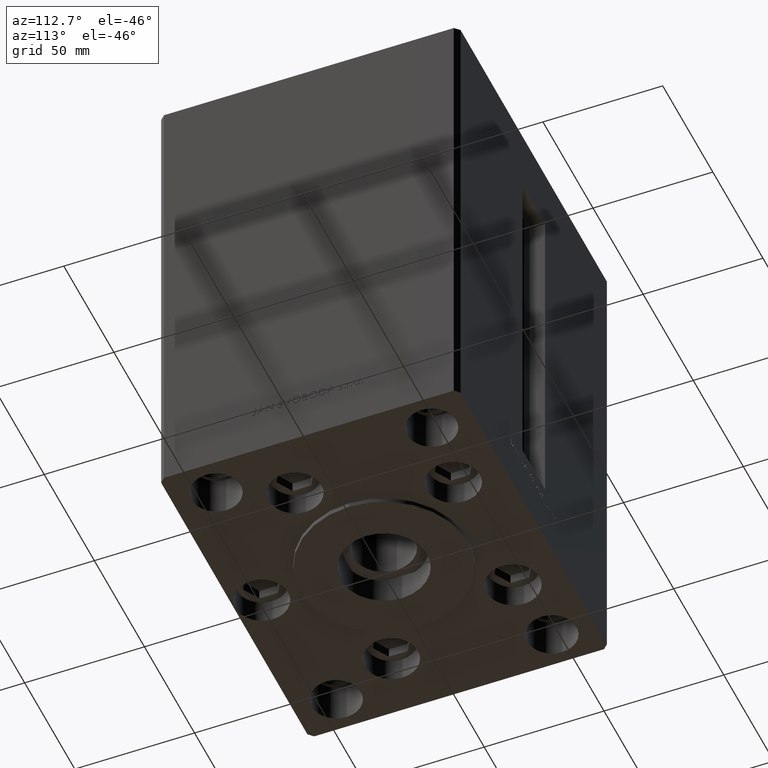
[diagram: clean part render]
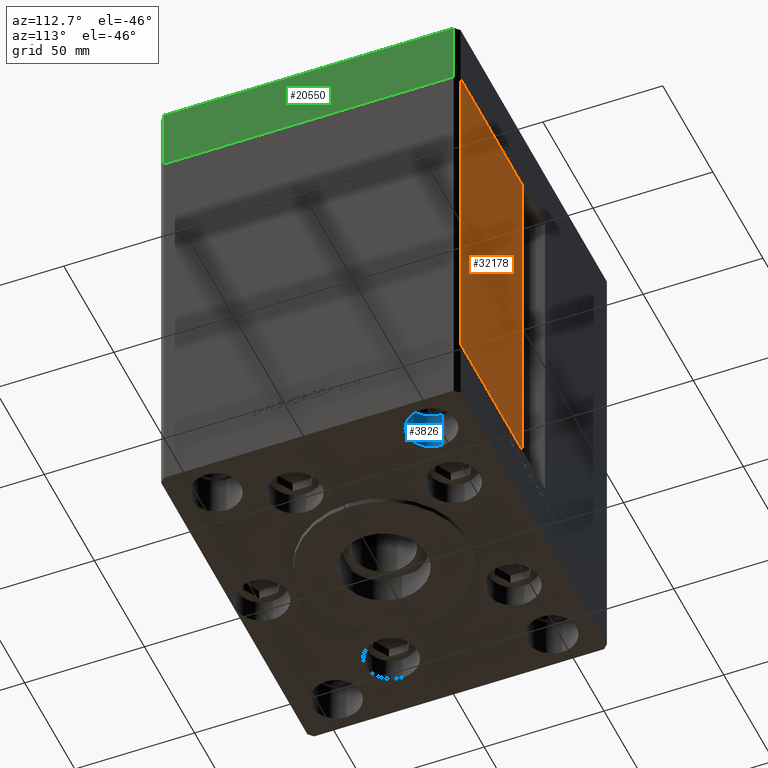
[diagram: same view with three faces highlighted in distinct colors, each labeled with its STEP entity id]
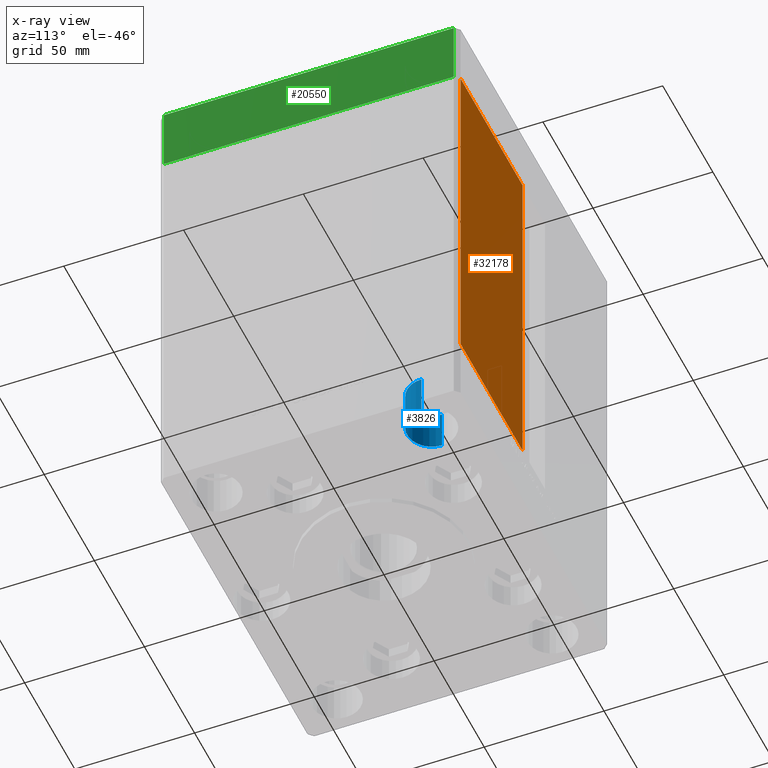
[diagram: x-ray of the same camera — body ghosted, the three highlighted faces saturated]
A machine part, auxiliary view with three faces highlighted in distinct colors.
The next image is the same camera in x-ray (body ghosted, the three faces saturated) — at least one of them is partly hidden behind the body in this view.
Their STEP definitions:

[orange] entity #32178 — the highlighted planar face has unit normal (-0, -1, 0).
#1637 = VERTEX_POINT ( 'NONE', #8593 ) ;
#3051 = CARTESIAN_POINT ( 'NONE',  ( 11.25000000000000178, 62.49999999999999289, 0.000000000000000000 ) ) ;
#4965 = DIRECTION ( 'NONE',  ( -0.000000000000000000, -0.000000000000000000, -1.000000000000000000 ) ) ;
#6246 = PLANE ( 'NONE',  #23651 ) ;
#7006 = DIRECTION ( 'NONE',  ( -0.000000000000000000, -0.000000000000000000, 1.000000000000000000 ) ) ;
#7814 = VERTEX_POINT ( 'NONE', #17907 ) ;
#8593 = CARTESIAN_POINT ( 'NONE',  ( 11.25000000000000178, 62.49999999999999289, 0.000000000000000000 ) ) ;
#9458 = CARTESIAN_POINT ( 'NONE',  ( -11.25000000000000178, 62.49999999999999289, 147.0000000000000000 ) ) ;
#13650 = DIRECTION ( 'NONE',  ( -1.123707514802790025E-16, -1.000000000000000000, 0.000000000000000000 ) ) ;
#14129 = DIRECTION ( 'NONE',  ( 1.000000000000000000, -1.123707514802790025E-16, 0.000000000000000000 ) ) ;
#14259 = ORIENTED_EDGE ( 'NONE', *, *, #28416, .T. ) ;
#15799 = CARTESIAN_POINT ( 'NONE',  ( 73.00000000000001421, 62.50000000000000000, 0.000000000000000000 ) ) ;
#15997 = VECTOR ( 'NONE', #4965, 1000.000000000000000 ) ;
#16520 = CARTESIAN_POINT ( 'NONE',  ( -11.25000000000000178, 62.49999999999999289, 0.000000000000000000 ) ) ;
#17533 = VERTEX_POINT ( 'NONE', #15799 ) ;
#17907 = CARTESIAN_POINT ( 'NONE',  ( 73.00000000000001421, 62.50000000000000000, 147.0000000000000000 ) ) ;
#19678 = ORIENTED_EDGE ( 'NONE', *, *, #24447, .T. ) ;
#23651 = AXIS2_PLACEMENT_3D ( 'NONE', #47562, #13650, #14129 ) ;
#23980 = LINE ( 'NONE', #34903, #15997 ) ;
#24447 = EDGE_CURVE ( 'NONE', #17533, #1637, #35583, .T. ) ;
#26298 = ORIENTED_EDGE ( 'NONE', *, *, #32303, .T. ) ;
#26483 = DIRECTION ( 'NONE',  ( 1.000000000000000000, 0.000000000000000000, 0.000000000000000000 ) ) ;
#28238 = LINE ( 'NONE', #9458, #30768 ) ;
#28416 = EDGE_CURVE ( 'NONE', #1637, #43048, #44107, .T. ) ;
#28628 = DIRECTION ( 'NONE',  ( -1.000000000000000000, 1.123707514802790025E-16, 0.000000000000000000 ) ) ;
#28928 = VECTOR ( 'NONE', #7006, 1000.000000000000000 ) ;
#30768 = VECTOR ( 'NONE', #26483, 1000.000000000000000 ) ;
#32166 = EDGE_LOOP ( 'NONE', ( #19678, #14259, #26298, #36126 ) ) ;
#32178 = ADVANCED_FACE ( 'NONE', ( #32955 ), #6246, .F. ) ;
#32303 = EDGE_CURVE ( 'NONE', #43048, #7814, #28238, .T. ) ;
#32955 = FACE_OUTER_BOUND ( 'NONE', #32166, .T. ) ;
#34903 = CARTESIAN_POINT ( 'NONE',  ( 73.00000000000001421, 62.50000000000000000, 147.0000000000000000 ) ) ;
#35583 = LINE ( 'NONE', #16520, #43176 ) ;
#36126 = ORIENTED_EDGE ( 'NONE', *, *, #47897, .T. ) ;
#42342 = CARTESIAN_POINT ( 'NONE',  ( 11.24999999999999467, 62.49999999999999289, 147.0000000000000000 ) ) ;
#43048 = VERTEX_POINT ( 'NONE', #42342 ) ;
#43176 = VECTOR ( 'NONE', #28628, 1000.000000000000000 ) ;
#44107 = LINE ( 'NONE', #3051, #28928 ) ;
#47562 = CARTESIAN_POINT ( 'NONE',  ( -11.25000000000000178, 62.49999999999999289, 147.0000000000000000 ) ) ;
#47897 = EDGE_CURVE ( 'NONE', #7814, #17533, #23980, .T. ) ;

[blue] entity #3826 — the highlighted cylindrical surface (edge-blend (fillet) strip) has radius 10.25 mm, axis along (0, 0, -1).
#174 = CARTESIAN_POINT ( 'NONE',  ( -49.74999999999999289, 45.00000000000000711, -17.00000000000000000 ) ) ;
#336 = EDGE_CURVE ( 'NONE', #23388, #46295, #48598, .T. ) ;
#2532 = DIRECTION ( 'NONE',  ( 1.000000000000000000, 0.000000000000000000, 0.000000000000000000 ) ) ;
#3826 = ADVANCED_FACE ( 'NONE', ( #17185 ), #16942, .F. ) ;
#4749 = AXIS2_PLACEMENT_3D ( 'NONE', #36008, #42941, #9781 ) ;
#4768 = CARTESIAN_POINT ( 'NONE',  ( -70.25000000000000000, 45.00000000000000711, 0.000000000000000000 ) ) ;
#4780 = CARTESIAN_POINT ( 'NONE',  ( -60.00000000000000000, 45.00000000000000711, -17.00000000000000000 ) ) ;
#6753 = AXIS2_PLACEMENT_3D ( 'NONE', #13643, #24042, #2532 ) ;
#9781 = DIRECTION ( 'NONE',  ( 1.000000000000000000, 0.000000000000000000, 0.000000000000000000 ) ) ;
#13643 = CARTESIAN_POINT ( 'NONE',  ( -60.00000000000000000, 45.00000000000000711, 0.000000000000000000 ) ) ;
#15847 = LINE ( 'NONE', #34434, #30468 ) ;
#16136 = DIRECTION ( 'NONE',  ( 1.000000000000000000, 0.000000000000000000, 0.000000000000000000 ) ) ;
#16942 = CYLINDRICAL_SURFACE ( 'NONE', #4749, 10.25000000000000178 ) ;
#17185 = FACE_OUTER_BOUND ( 'NONE', #43695, .T. ) ;
#19845 = DIRECTION ( 'NONE',  ( 0.000000000000000000, 0.000000000000000000, 1.000000000000000000 ) ) ;
#21120 = EDGE_CURVE ( 'NONE', #44446, #41087, #27279, .T. ) ;
#21434 = LINE ( 'NONE', #24895, #36798 ) ;
#21919 = ORIENTED_EDGE ( 'NONE', *, *, #21120, .T. ) ;
#22521 = EDGE_CURVE ( 'NONE', #23388, #44446, #21434, .T. ) ;
#23388 = VERTEX_POINT ( 'NONE', #36363 ) ;
#24042 = DIRECTION ( 'NONE',  ( 0.000000000000000000, 0.000000000000000000, 1.000000000000000000 ) ) ;
#24895 = CARTESIAN_POINT ( 'NONE',  ( -70.25000000000000000, 45.00000000000000711, -17.00000000000000000 ) ) ;
#25589 = EDGE_CURVE ( 'NONE', #46295, #41087, #15847, .T. ) ;
#27209 = AXIS2_PLACEMENT_3D ( 'NONE', #4780, #19845, #16136 ) ;
#27279 = CIRCLE ( 'NONE', #6753, 10.25000000000000178 ) ;
#30219 = DIRECTION ( 'NONE',  ( -0.000000000000000000, -0.000000000000000000, 1.000000000000000000 ) ) ;
#30282 = ORIENTED_EDGE ( 'NONE', *, *, #336, .F. ) ;
#30468 = VECTOR ( 'NONE', #30219, 1000.000000000000000 ) ;
#34434 = CARTESIAN_POINT ( 'NONE',  ( -49.74999999999999289, 45.00000000000000711, -17.00000000000000000 ) ) ;
#35806 = DIRECTION ( 'NONE',  ( -0.000000000000000000, -0.000000000000000000, 1.000000000000000000 ) ) ;
#36008 = CARTESIAN_POINT ( 'NONE',  ( -60.00000000000000000, 45.00000000000000711, -17.00000000000000000 ) ) ;
#36363 = CARTESIAN_POINT ( 'NONE',  ( -70.25000000000000000, 45.00000000000000711, -17.00000000000000000 ) ) ;
#36798 = VECTOR ( 'NONE', #35806, 1000.000000000000000 ) ;
#41087 = VERTEX_POINT ( 'NONE', #42483 ) ;
#42483 = CARTESIAN_POINT ( 'NONE',  ( -49.74999999999999289, 45.00000000000000711, 0.000000000000000000 ) ) ;
#42941 = DIRECTION ( 'NONE',  ( -0.000000000000000000, -0.000000000000000000, 1.000000000000000000 ) ) ;
#43695 = EDGE_LOOP ( 'NONE', ( #30282, #44947, #21919, #47872 ) ) ;
#44446 = VERTEX_POINT ( 'NONE', #4768 ) ;
#44947 = ORIENTED_EDGE ( 'NONE', *, *, #22521, .T. ) ;
#46295 = VERTEX_POINT ( 'NONE', #174 ) ;
#47872 = ORIENTED_EDGE ( 'NONE', *, *, #25589, .F. ) ;
#48598 = CIRCLE ( 'NONE', #27209, 10.25000000000000178 ) ;

[green] entity #20550 — the highlighted planar face has unit normal (1, 0, 0).
#227 = ORIENTED_EDGE ( 'NONE', *, *, #33436, .T. ) ;
#851 = VERTEX_POINT ( 'NONE', #22146 ) ;
#891 = DIRECTION ( 'NONE',  ( -6.881547673296424104E-16, 1.000000000000000000, 0.000000000000000000 ) ) ;
#1603 = DIRECTION ( 'NONE',  ( 1.000000000000000000, 6.881547673296424104E-16, -0.000000000000000000 ) ) ;
#2701 = VECTOR ( 'NONE', #40817, 1000.000000000000000 ) ;
#3477 = LINE ( 'NONE', #44534, #2701 ) ;
#6355 = ORIENTED_EDGE ( 'NONE', *, *, #38515, .F. ) ;
#6984 = VECTOR ( 'NONE', #18781, 1000.000000000000000 ) ;
#8469 = CARTESIAN_POINT ( 'NONE',  ( 74.99999999999992895, 60.50000000000002842, -27.00000000000000000 ) ) ;
#8545 = FACE_OUTER_BOUND ( 'NONE', #42428, .T. ) ;
#8948 = CARTESIAN_POINT ( 'NONE',  ( 75.00000000000001421, -60.50000000000000711, -27.00000000000000000 ) ) ;
#9191 = DIRECTION ( 'NONE',  ( 0.000000000000000000, 0.000000000000000000, 1.000000000000000000 ) ) ;
#15311 = LINE ( 'NONE', #34620, #6984 ) ;
#16162 = AXIS2_PLACEMENT_3D ( 'NONE', #41939, #1603, #891 ) ;
#17439 = EDGE_CURVE ( 'NONE', #851, #22825, #3477, .T. ) ;
#17692 = CARTESIAN_POINT ( 'NONE',  ( 75.00000000000001421, -60.50000000000000711, -27.00000000000000000 ) ) ;
#18187 = LINE ( 'NONE', #17692, #38283 ) ;
#18781 = DIRECTION ( 'NONE',  ( 0.000000000000000000, 0.000000000000000000, 1.000000000000000000 ) ) ;
#18901 = EDGE_CURVE ( 'NONE', #40665, #38569, #18187, .T. ) ;
#20550 = ADVANCED_FACE ( 'NONE', ( #8545 ), #34780, .T. ) ;
#22146 = CARTESIAN_POINT ( 'NONE',  ( 75.00000000000001421, -60.50000000000000711, 0.000000000000000000 ) ) ;
#22825 = VERTEX_POINT ( 'NONE', #44645 ) ;
#26390 = ORIENTED_EDGE ( 'NONE', *, *, #18901, .T. ) ;
#26897 = ORIENTED_EDGE ( 'NONE', *, *, #17439, .F. ) ;
#33436 = EDGE_CURVE ( 'NONE', #38569, #22825, #15311, .T. ) ;
#34620 = CARTESIAN_POINT ( 'NONE',  ( 74.99999999999992895, 60.50000000000002842, -27.00000000000000000 ) ) ;
#34773 = VECTOR ( 'NONE', #9191, 1000.000000000000000 ) ;
#34780 = PLANE ( 'NONE',  #16162 ) ;
#37259 = DIRECTION ( 'NONE',  ( -6.881547673296424104E-16, 1.000000000000000000, 0.000000000000000000 ) ) ;
#38283 = VECTOR ( 'NONE', #37259, 1000.000000000000000 ) ;
#38515 = EDGE_CURVE ( 'NONE', #40665, #851, #47034, .T. ) ;
#38569 = VERTEX_POINT ( 'NONE', #8469 ) ;
#40665 = VERTEX_POINT ( 'NONE', #43079 ) ;
#40817 = DIRECTION ( 'NONE',  ( -6.881547673296424104E-16, 1.000000000000000000, 0.000000000000000000 ) ) ;
#41939 = CARTESIAN_POINT ( 'NONE',  ( 75.00000000000001421, -60.50000000000000711, -27.00000000000000000 ) ) ;
#42428 = EDGE_LOOP ( 'NONE', ( #26897, #6355, #26390, #227 ) ) ;
#43079 = CARTESIAN_POINT ( 'NONE',  ( 75.00000000000001421, -60.50000000000000711, -27.00000000000000000 ) ) ;
#44534 = CARTESIAN_POINT ( 'NONE',  ( 75.00000000000001421, -60.50000000000000711, 0.000000000000000000 ) ) ;
#44645 = CARTESIAN_POINT ( 'NONE',  ( 74.99999999999992895, 60.50000000000002842, 0.000000000000000000 ) ) ;
#47034 = LINE ( 'NONE', #8948, #34773 ) ;